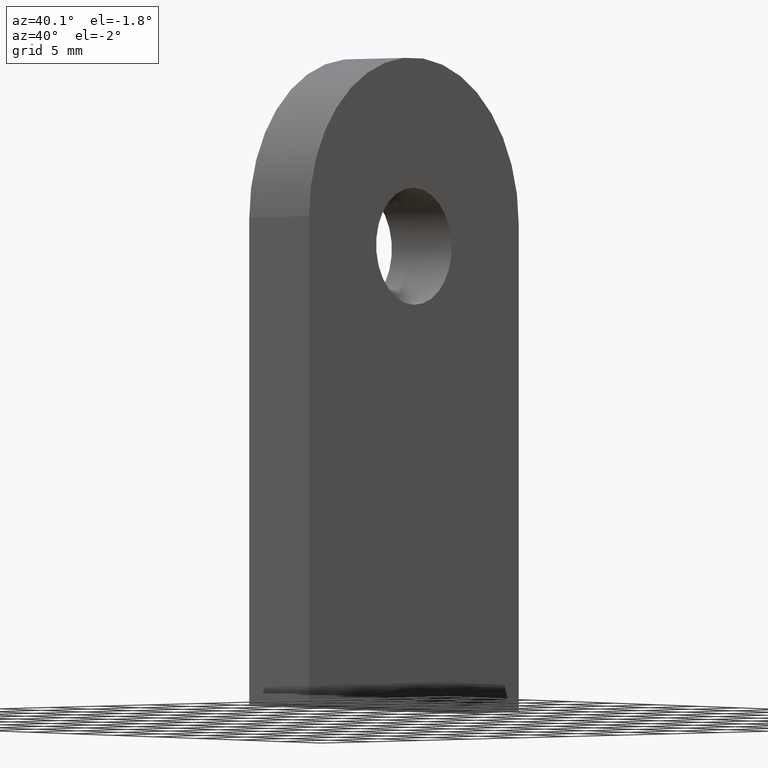
[diagram: clean part render]
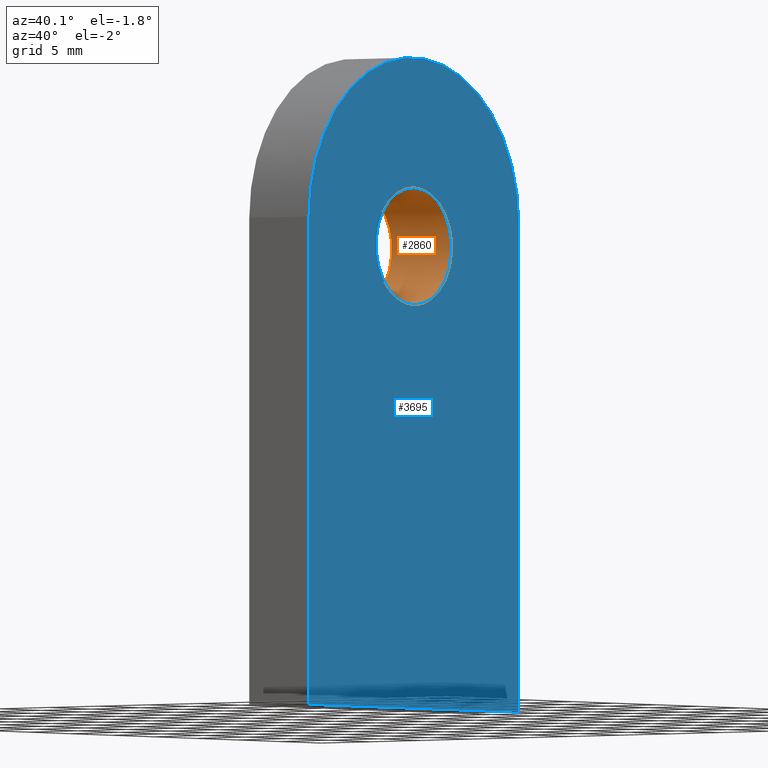
[diagram: same view with the hole feature highlighted: cylindrical wall and planar end face, labeled with their STEP entity ids]
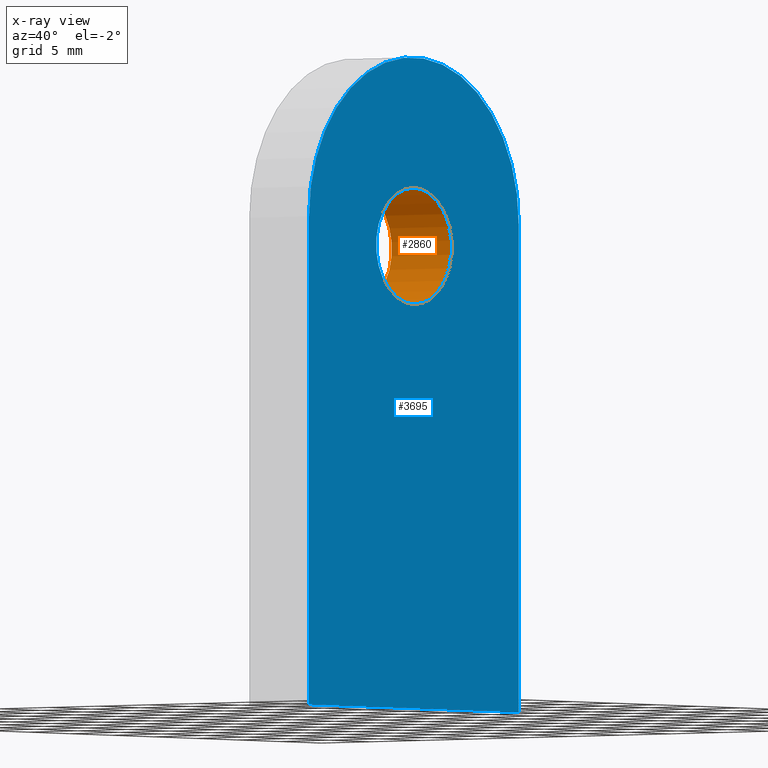
[diagram: x-ray of the same camera — body ghosted, the hole faces saturated]
A machine part, auxiliary view. The highlighted faces form one hole feature of diameter 9 mm: the cylindrical wall (entity #2860, orange) and its adjacent planar end face (entity #3695, blue) — they share a circular edge in the B-rep.
The next image is the same camera in x-ray (body ghosted, the hole faces saturated) — the bore reads through the body.
Wall:
#71 = CARTESIAN_POINT ( 'NONE',  ( 3.000000000000000000, 0.000000000000000000, 30.99999999999999289 ) ) ;
#273 = DIRECTION ( 'NONE',  ( 0.000000000000000000, 0.000000000000000000, -1.000000000000000000 ) ) ;
#736 = ORIENTED_EDGE ( 'NONE', *, *, #950, .F. ) ;
#950 = EDGE_CURVE ( 'NONE', #11813, #11813, #9622, .T. ) ;
#1073 = AXIS2_PLACEMENT_3D ( 'NONE', #1575, #8222, #9164 ) ;
#1283 = DIRECTION ( 'NONE',  ( 0.000000000000000000, 0.000000000000000000, -1.000000000000000000 ) ) ;
#1575 = CARTESIAN_POINT ( 'NONE',  ( -3.000000000000000000, 0.000000000000000000, 35.49999999999999289 ) ) ;
#1784 = EDGE_CURVE ( 'NONE', #6769, #6769, #3537, .T. ) ;
#2141 = CARTESIAN_POINT ( 'NONE',  ( -3.000000000000000000, 0.000000000000000000, 35.49999999999999289 ) ) ;
#2263 = DIRECTION ( 'NONE',  ( 1.000000000000000000, 0.000000000000000000, 0.000000000000000000 ) ) ;
#2860 = ADVANCED_FACE ( 'NONE', ( #11089, #3512 ), #8703, .F. ) ;
#3019 = AXIS2_PLACEMENT_3D ( 'NONE', #9826, #2263, #1283 ) ;
#3194 = DIRECTION ( 'NONE',  ( 1.000000000000000000, -0.000000000000000000, -0.000000000000000000 ) ) ;
#3512 = FACE_OUTER_BOUND ( 'NONE', #6639, .T. ) ;
#3537 = CIRCLE ( 'NONE', #3019, 4.499999999999997335 ) ;
#3661 = AXIS2_PLACEMENT_3D ( 'NONE', #2141, #3194, #273 ) ;
#4030 = CARTESIAN_POINT ( 'NONE',  ( -3.000000000000000000, 0.000000000000000000, 30.99999999999999289 ) ) ;
#5807 = EDGE_LOOP ( 'NONE', ( #736 ) ) ;
#6614 = ORIENTED_EDGE ( 'NONE', *, *, #1784, .T. ) ;
#6639 = EDGE_LOOP ( 'NONE', ( #6614 ) ) ;
#6769 = VERTEX_POINT ( 'NONE', #71 ) ;
#8222 = DIRECTION ( 'NONE',  ( 1.000000000000000000, 0.000000000000000000, 0.000000000000000000 ) ) ;
#8703 = CYLINDRICAL_SURFACE ( 'NONE', #3661, 4.499999999999997335 ) ;
#9164 = DIRECTION ( 'NONE',  ( 0.000000000000000000, 0.000000000000000000, -1.000000000000000000 ) ) ;
#9622 = CIRCLE ( 'NONE', #1073, 4.499999999999997335 ) ;
#9826 = CARTESIAN_POINT ( 'NONE',  ( 3.000000000000000000, 0.000000000000000000, 35.49999999999999289 ) ) ;
#11089 = FACE_OUTER_BOUND ( 'NONE', #5807, .T. ) ;
#11813 = VERTEX_POINT ( 'NONE', #4030 ) ;
End face:
#71 = CARTESIAN_POINT ( 'NONE',  ( 3.000000000000000000, 0.000000000000000000, 30.99999999999999289 ) ) ;
#348 = DIRECTION ( 'NONE',  ( 0.000000000000000000, -1.000000000000000000, 0.000000000000000000 ) ) ;
#653 = EDGE_LOOP ( 'NONE', ( #5224, #5164, #3149, #6351 ) ) ;
#797 = CARTESIAN_POINT ( 'NONE',  ( 3.000000000000000000, -12.50000000000000000, -3.367778697655221307E-15 ) ) ;
#1032 = CARTESIAN_POINT ( 'NONE',  ( 3.000000000000000000, 12.50000000000000000, -3.367778697655221307E-15 ) ) ;
#1195 = EDGE_CURVE ( 'NONE', #8131, #2373, #8725, .T. ) ;
#1223 = CARTESIAN_POINT ( 'NONE',  ( 3.000000000000000000, -12.50000000000000000, -3.367778697655221307E-15 ) ) ;
#1283 = DIRECTION ( 'NONE',  ( 0.000000000000000000, 0.000000000000000000, -1.000000000000000000 ) ) ;
#1425 = VERTEX_POINT ( 'NONE', #11411 ) ;
#1637 = DIRECTION ( 'NONE',  ( 0.000000000000000000, 0.000000000000000000, 1.000000000000000000 ) ) ;
#1784 = EDGE_CURVE ( 'NONE', #6769, #6769, #3537, .T. ) ;
#1792 = DIRECTION ( 'NONE',  ( 0.000000000000000000, 0.000000000000000000, 1.000000000000000000 ) ) ;
#2093 = VERTEX_POINT ( 'NONE', #797 ) ;
#2157 = DIRECTION ( 'NONE',  ( 0.000000000000000000, -4.625929269271485791E-17, 1.000000000000000000 ) ) ;
#2263 = DIRECTION ( 'NONE',  ( 1.000000000000000000, 0.000000000000000000, 0.000000000000000000 ) ) ;
#2373 = VERTEX_POINT ( 'NONE', #1032 ) ;
#2502 = AXIS2_PLACEMENT_3D ( 'NONE', #10173, #8281, #1637 ) ;
#2941 = AXIS2_PLACEMENT_3D ( 'NONE', #6560, #10406, #1792 ) ;
#3019 = AXIS2_PLACEMENT_3D ( 'NONE', #9826, #2263, #1283 ) ;
#3149 = ORIENTED_EDGE ( 'NONE', *, *, #8564, .F. ) ;
#3537 = CIRCLE ( 'NONE', #3019, 4.499999999999997335 ) ;
#3695 = ADVANCED_FACE ( 'NONE', ( #10017, #5114 ), #7436, .F. ) ;
#3846 = LINE ( 'NONE', #1223, #8898 ) ;
#3900 = LINE ( 'NONE', #8085, #5812 ) ;
#5104 = CARTESIAN_POINT ( 'NONE',  ( 3.000000000000000000, 12.50000000000000178, 37.50000000000000000 ) ) ;
#5114 = FACE_OUTER_BOUND ( 'NONE', #653, .T. ) ;
#5164 = ORIENTED_EDGE ( 'NONE', *, *, #6012, .F. ) ;
#5224 = ORIENTED_EDGE ( 'NONE', *, *, #10932, .F. ) ;
#5584 = VECTOR ( 'NONE', #5989, 1000.000000000000000 ) ;
#5812 = VECTOR ( 'NONE', #348, 1000.000000000000000 ) ;
#5936 = CIRCLE ( 'NONE', #2502, 12.50000000000000355 ) ;
#5989 = DIRECTION ( 'NONE',  ( 0.000000000000000000, -4.625929269271485791E-17, -1.000000000000000000 ) ) ;
#6012 = EDGE_CURVE ( 'NONE', #2093, #1425, #3846, .T. ) ;
#6351 = ORIENTED_EDGE ( 'NONE', *, *, #1195, .F. ) ;
#6560 = CARTESIAN_POINT ( 'NONE',  ( 3.000000000000000000, 0.000000000000000000, 37.50000000000000000 ) ) ;
#6625 = ORIENTED_EDGE ( 'NONE', *, *, #1784, .F. ) ;
#6769 = VERTEX_POINT ( 'NONE', #71 ) ;
#7436 = PLANE ( 'NONE',  #2941 ) ;
#8085 = CARTESIAN_POINT ( 'NONE',  ( 3.000000000000000000, 12.50000000000000000, -3.367778697655221307E-15 ) ) ;
#8131 = VERTEX_POINT ( 'NONE', #5104 ) ;
#8281 = DIRECTION ( 'NONE',  ( -1.000000000000000000, -0.000000000000000000, 0.000000000000000000 ) ) ;
#8564 = EDGE_CURVE ( 'NONE', #2373, #2093, #3900, .T. ) ;
#8725 = LINE ( 'NONE', #10600, #5584 ) ;
#8898 = VECTOR ( 'NONE', #2157, 1000.000000000000000 ) ;
#9826 = CARTESIAN_POINT ( 'NONE',  ( 3.000000000000000000, 0.000000000000000000, 35.49999999999999289 ) ) ;
#10017 = FACE_BOUND ( 'NONE', #11918, .T. ) ;
#10173 = CARTESIAN_POINT ( 'NONE',  ( 3.000000000000000000, 0.000000000000000000, 37.50000000000000000 ) ) ;
#10406 = DIRECTION ( 'NONE',  ( -1.000000000000000000, -0.000000000000000000, 0.000000000000000000 ) ) ;
#10600 = CARTESIAN_POINT ( 'NONE',  ( 3.000000000000000000, 12.50000000000000178, 37.50000000000000000 ) ) ;
#10932 = EDGE_CURVE ( 'NONE', #1425, #8131, #5936, .T. ) ;
#11411 = CARTESIAN_POINT ( 'NONE',  ( 3.000000000000000000, -12.50000000000000178, 37.50000000000000000 ) ) ;
#11918 = EDGE_LOOP ( 'NONE', ( #6625 ) ) ;